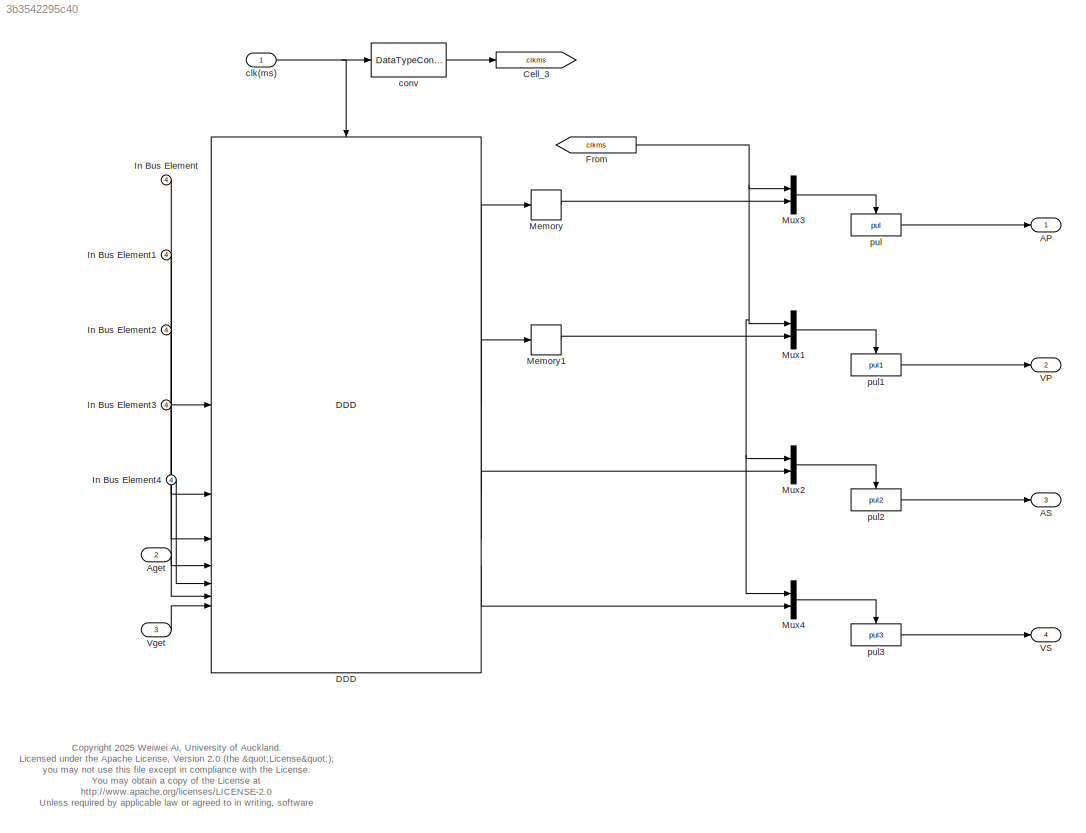
MODEL slx_3b3542295c40
KIND model
CONFIG AbsTol = auto
CONFIG EnableMultiTasking = off
CONFIG FixedStep = 0.0005
CONFIG MaxStep = auto
CONFIG MinStep = auto
CONFIG RelTol = 1e-3
CONFIG SampleTimeConstraint = Unconstrained
CONFIG SolverName = ode1
CONFIG StartTime = 0.0
CONFIG StopTime = 10.0
BLOCK [Outport] AP
BLOCK [Outport] AS
  Port = 3
BLOCK [Inport] Aget
  Port = 2
BLOCK [Goto] Cell_3
  GotoTag = clkms
BLOCK [Reference] DDD  REF=Libs_second/PM_DDD_v3/DDD
  SourceBlock = Libs_second/PM_DDD_v3/DDD
  SourceType = SubSystem
BLOCK [From] From
  GotoTag = clkms
BLOCK [Inport] In Bus Element
  Port = 4
BLOCK [Inport] In Bus Element1
  Port = 4
BLOCK [Inport] In Bus Element2
  Port = 4
BLOCK [Inport] In Bus Element3
  Port = 4
BLOCK [Inport] In Bus Element4
  Port = 4
BLOCK [Memory] Memory
BLOCK [Memory] Memory1
BLOCK [Mux] Mux1
  DisplayOption = bar
  Inputs = 2
BLOCK [Mux] Mux2
  DisplayOption = bar
  Inputs = 2
BLOCK [Mux] Mux3
  DisplayOption = bar
  Inputs = 2
BLOCK [Mux] Mux4
  DisplayOption = bar
  Inputs = 2
BLOCK [Outport] VP
  Port = 2
BLOCK [Outport] VS
  Port = 4
BLOCK [Inport] Vget
  Port = 3
BLOCK [Inport] clk(ms)
BLOCK [DataTypeConversion] conv
  RndMeth = Floor
  SaturateOnIntegerOverflow = off
BLOCK [Reference] pul  REF=Libs_second/PM_DDD_v3/pul
  SourceBlock = Libs_second/PM_DDD_v3/pul
  SourceType = SubSystem
BLOCK [Reference] pul1  REF=Libs_second/PM_DDD_v3/pul1
  SourceBlock = Libs_second/PM_DDD_v3/pul1
  SourceType = SubSystem
BLOCK [Reference] pul2  REF=Libs_second/PM_DDD_v3/pul2
  SourceBlock = Libs_second/PM_DDD_v3/pul2
  SourceType = SubSystem
BLOCK [Reference] pul3  REF=Libs_second/PM_DDD_v3/pul3
  SourceBlock = Libs_second/PM_DDD_v3/pul3
  SourceType = SubSystem
ANNOTATION (root): <copyright redacted>
LINE Aget:1 -> DDD:6
LINE DDD:1 -> Memory:1
LINE DDD:2 -> Memory1:1
LINE DDD:3 -> Mux2:2
LINE DDD:4 -> Mux4:2
NET From:1 -> Mux1:1, Mux2:1, Mux3:1, Mux4:1
LINE In Bus Element1:1 -> DDD:2
LINE In Bus Element2:1 -> DDD:3
LINE In Bus Element3:1 -> DDD:4
LINE In Bus Element4:1 -> DDD:5
LINE In Bus Element:1 -> DDD:1
LINE Memory1:1 -> Mux1:2
LINE Memory:1 -> Mux3:2
LINE Mux1:1 -> pul1:trigger
LINE Mux2:1 -> pul2:trigger
LINE Mux3:1 -> pul:trigger
LINE Mux4:1 -> pul3:trigger
LINE Vget:1 -> DDD:7
NET clk(ms):1 -> DDD:trigger, conv:1
LINE conv:1 -> Cell_3:1
LINE pul1:1 -> VP:1
LINE pul2:1 -> AS:1
LINE pul3:1 -> VS:1
LINE pul:1 -> AP:1
note: NET lines group one-source signal fan-out (src -> all destinations, sorted); 1:1 wires keep LINE
